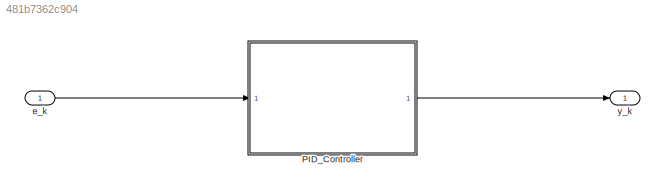
MODEL slx_481b7362c904
KIND model
CONFIG AbsTol = auto
CONFIG EnableMultiTasking = off
CONFIG FixedStep = Ts
CONFIG MaxStep = auto
CONFIG MinStep = auto
CONFIG PreLoadFcn = load('Parameters.mat')
CONFIG RelTol = 1e-3
CONFIG SampleTimeConstraint = Unconstrained
CONFIG SolverName = FixedStepDiscrete
CONFIG StartTime = 0.0
CONFIG StopTime = 10
BLOCK [ModelReference] PID_Controller
  ModelNameDialog = PID_Controller_referenceModel
  ModelReferenceVersion = 1.16
  Ports = [1, 1]
BLOCK [Inport] e_k
  OutDataTypeStr = double
  PortDimensions = 1
  SamplingMode = Sample based
  SignalType = real
BLOCK [Outport] y_k
  OutDataTypeStr = double
  PortDimensions = 1
  SamplingMode = Sample based
  SignalType = real
LINE PID_Controller:1 -> y_k:1
LINE e_k:1 -> PID_Controller:1
CHART Test Assessment Block states=1 transitions=1
  STATE_LABEL 'Run\n\n'
